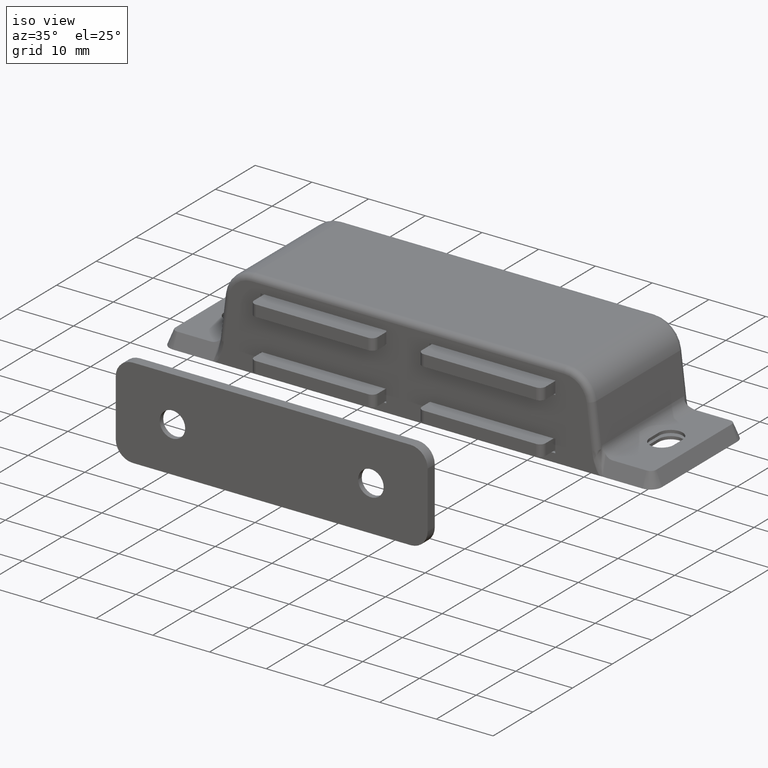
[diagram: clean part render]
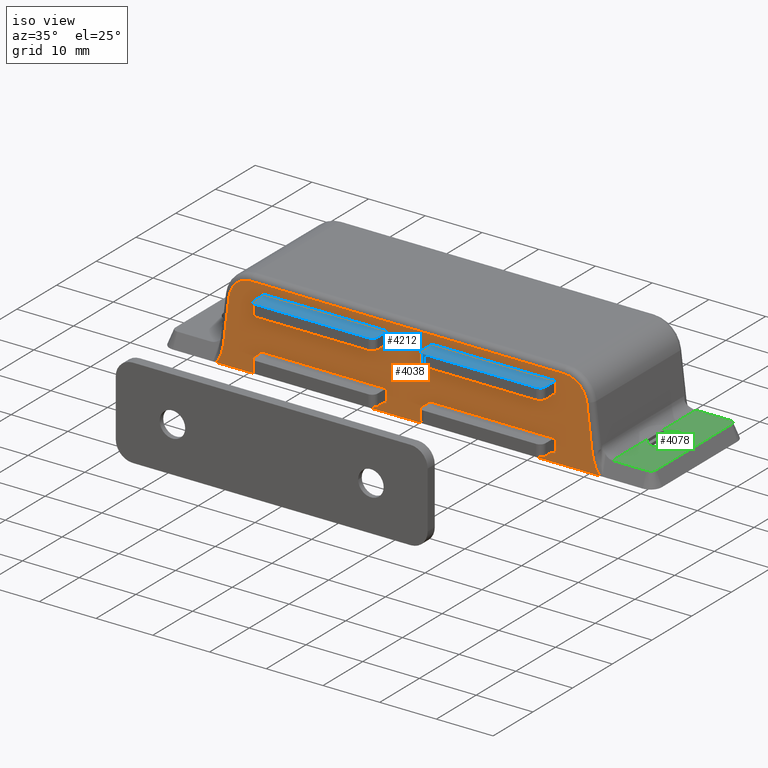
[diagram: same view with three faces highlighted in distinct colors, each labeled with its STEP entity id]
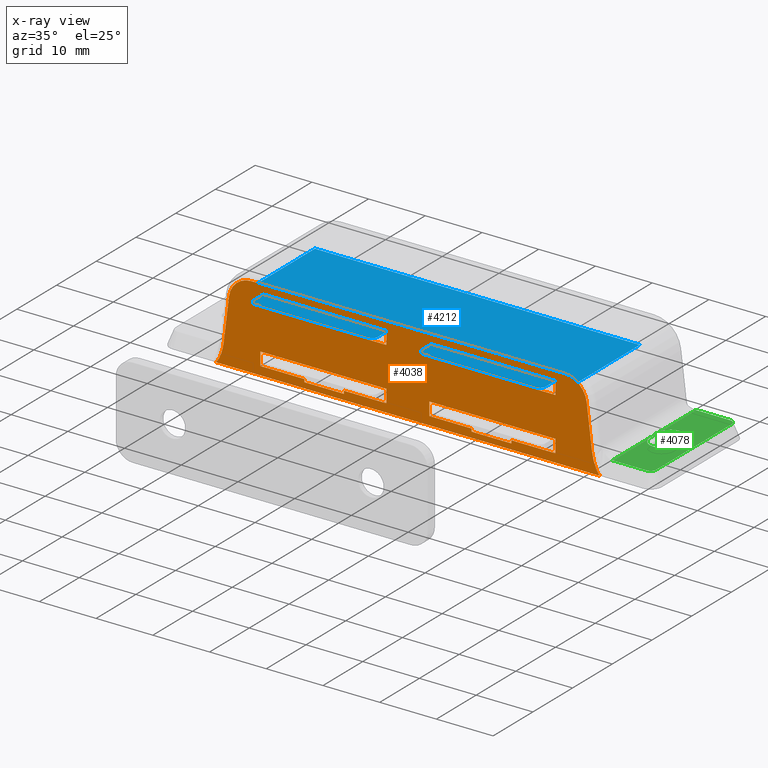
[diagram: x-ray of the same camera — body ghosted, the three highlighted faces saturated]
A machine part, iso view with three faces highlighted in distinct colors.
The next image is the same camera in x-ray (body ghosted, the three faces saturated) — at least one of them is partly hidden behind the body in this view.
Their STEP definitions:

[orange] entity #4038 — the highlighted planar face has unit normal (0, -1, 0).
#152=FACE_BOUND('',#571,.T.);
#153=FACE_BOUND('',#572,.T.);
#154=FACE_BOUND('',#573,.T.);
#155=FACE_BOUND('',#574,.T.);
#180=CIRCLE('',#4282,4.);
#181=CIRCLE('',#4283,4.);
#290=ELLIPSE('',#4281,4.065034677659,1.5);
#291=ELLIPSE('',#4284,4.06503467766131,1.5);
#336=FACE_OUTER_BOUND('',#570,.T.);
#570=EDGE_LOOP('',(#2752,#2753,#2754,#2755,#2756,#2757,#2758,#2759));
#571=EDGE_LOOP('',(#2760,#2761,#2762,#2763));
#572=EDGE_LOOP('',(#2764,#2765,#2766,#2767));
#573=EDGE_LOOP('',(#2768,#2769,#2770,#2771,#2772,#2773,#2774,#2775));
#574=EDGE_LOOP('',(#2776,#2777,#2778,#2779,#2780,#2781,#2782,#2783));
#814=LINE('',#5768,#1250);
#818=LINE('',#5777,#1254);
#822=LINE('',#5784,#1258);
#825=LINE('',#5790,#1261);
#827=LINE('',#5793,#1263);
#830=LINE('',#5801,#1266);
#833=LINE('',#5807,#1269);
#836=LINE('',#5813,#1272);
#839=LINE('',#5817,#1275);
#842=LINE('',#5825,#1278);
#846=LINE('',#5834,#1282);
#849=LINE('',#5840,#1285);
#853=LINE('',#5847,#1289);
#855=LINE('',#5850,#1291);
#858=LINE('',#5858,#1294);
#861=LINE('',#5864,#1297);
#864=LINE('',#5870,#1300);
#867=LINE('',#5874,#1303);
#868=LINE('',#5877,#1304);
#871=LINE('',#5883,#1307);
#874=LINE('',#5892,#1310);
#875=LINE('',#5896,#1311);
#876=LINE('',#5900,#1312);
#877=LINE('',#5903,#1313);
#878=LINE('',#5905,#1314);
#879=LINE('',#5906,#1315);
#880=LINE('',#5908,#1316);
#881=LINE('',#5909,#1317);
#1250=VECTOR('',#4620,7.75);
#1254=VECTOR('',#4626,7.45);
#1258=VECTOR('',#4632,2.30000000000304);
#1261=VECTOR('',#4637,22.2);
#1263=VECTOR('',#4641,2.3000000000036);
#1266=VECTOR('',#4646,2.2999999999975);
#1269=VECTOR('',#4651,22.2);
#1272=VECTOR('',#4656,2.2999999999975);
#1275=VECTOR('',#4661,22.2);
#1278=VECTOR('',#4666,7.45);
#1282=VECTOR('',#4672,7.75);
#1285=VECTOR('',#4677,2.30000000000304);
#1289=VECTOR('',#4683,2.30000000000304);
#1291=VECTOR('',#4687,22.2);
#1294=VECTOR('',#4692,22.2);
#1297=VECTOR('',#4697,2.3);
#1300=VECTOR('',#4702,22.2);
#1303=VECTOR('',#4707,2.3);
#1304=VECTOR('',#4710,0.5);
#1307=VECTOR('',#4715,0.5);
#1310=VECTOR('',#4722,7.47974305745651);
#1311=VECTOR('',#4725,55.1527473544603);
#1312=VECTOR('',#4728,7.47974305754136);
#1313=VECTOR('',#4731,67.7868555901298);
#1314=VECTOR('',#4732,0.5);
#1315=VECTOR('',#4733,7.);
#1316=VECTOR('',#4734,0.5);
#1317=VECTOR('',#4735,7.);
#1686=VERTEX_POINT('',#5765);
#1687=VERTEX_POINT('',#5767);
#1690=VERTEX_POINT('',#5774);
#1691=VERTEX_POINT('',#5776);
#1693=VERTEX_POINT('',#5782);
#1695=VERTEX_POINT('',#5788);
#1698=VERTEX_POINT('',#5798);
#1699=VERTEX_POINT('',#5800);
#1701=VERTEX_POINT('',#5806);
#1703=VERTEX_POINT('',#5812);
#1706=VERTEX_POINT('',#5822);
#1707=VERTEX_POINT('',#5824);
#1710=VERTEX_POINT('',#5831);
#1711=VERTEX_POINT('',#5833);
#1713=VERTEX_POINT('',#5839);
#1715=VERTEX_POINT('',#5845);
#1718=VERTEX_POINT('',#5855);
#1719=VERTEX_POINT('',#5857);
#1721=VERTEX_POINT('',#5863);
#1723=VERTEX_POINT('',#5869);
#1724=VERTEX_POINT('',#5876);
#1726=VERTEX_POINT('',#5882);
#1728=VERTEX_POINT('',#5888);
#1729=VERTEX_POINT('',#5889);
#1730=VERTEX_POINT('',#5891);
#1731=VERTEX_POINT('',#5893);
#1732=VERTEX_POINT('',#5895);
#1733=VERTEX_POINT('',#5897);
#1734=VERTEX_POINT('',#5899);
#1735=VERTEX_POINT('',#5901);
#1736=VERTEX_POINT('',#5904);
#1737=VERTEX_POINT('',#5907);
#2072=EDGE_CURVE('',#1687,#1686,#814,.T.);
#2076=EDGE_CURVE('',#1691,#1690,#818,.T.);
#2080=EDGE_CURVE('',#1690,#1693,#822,.T.);
#2083=EDGE_CURVE('',#1693,#1695,#825,.T.);
#2085=EDGE_CURVE('',#1695,#1687,#827,.T.);
#2088=EDGE_CURVE('',#1699,#1698,#830,.T.);
#2091=EDGE_CURVE('',#1701,#1699,#833,.T.);
#2094=EDGE_CURVE('',#1703,#1701,#836,.T.);
#2097=EDGE_CURVE('',#1698,#1703,#839,.T.);
#2100=EDGE_CURVE('',#1707,#1706,#842,.T.);
#2104=EDGE_CURVE('',#1711,#1710,#846,.T.);
#2107=EDGE_CURVE('',#1713,#1707,#849,.T.);
#2111=EDGE_CURVE('',#1710,#1715,#853,.T.);
#2113=EDGE_CURVE('',#1715,#1713,#855,.T.);
#2116=EDGE_CURVE('',#1719,#1718,#858,.T.);
#2119=EDGE_CURVE('',#1721,#1719,#861,.T.);
#2122=EDGE_CURVE('',#1723,#1721,#864,.T.);
#2125=EDGE_CURVE('',#1718,#1723,#867,.T.);
#2126=EDGE_CURVE('',#1724,#1691,#868,.T.);
#2129=EDGE_CURVE('',#1726,#1711,#871,.T.);
#2132=EDGE_CURVE('',#1728,#1729,#290,.T.);
#2133=EDGE_CURVE('',#1730,#1728,#874,.T.);
#2134=EDGE_CURVE('',#1731,#1730,#180,.T.);
#2135=EDGE_CURVE('',#1732,#1731,#875,.T.);
#2136=EDGE_CURVE('',#1733,#1732,#181,.T.);
#2137=EDGE_CURVE('',#1734,#1733,#876,.T.);
#2138=EDGE_CURVE('',#1735,#1734,#291,.T.);
#2139=EDGE_CURVE('',#1735,#1729,#877,.T.);
#2140=EDGE_CURVE('',#1706,#1736,#878,.T.);
#2141=EDGE_CURVE('',#1736,#1726,#879,.T.);
#2142=EDGE_CURVE('',#1686,#1737,#880,.T.);
#2143=EDGE_CURVE('',#1737,#1724,#881,.T.);
#2752=ORIENTED_EDGE('',*,*,#2132,.F.);
#2753=ORIENTED_EDGE('',*,*,#2133,.F.);
#2754=ORIENTED_EDGE('',*,*,#2134,.F.);
#2755=ORIENTED_EDGE('',*,*,#2135,.F.);
#2756=ORIENTED_EDGE('',*,*,#2136,.F.);
#2757=ORIENTED_EDGE('',*,*,#2137,.F.);
#2758=ORIENTED_EDGE('',*,*,#2138,.F.);
#2759=ORIENTED_EDGE('',*,*,#2139,.T.);
#2760=ORIENTED_EDGE('',*,*,#2094,.T.);
#2761=ORIENTED_EDGE('',*,*,#2091,.T.);
#2762=ORIENTED_EDGE('',*,*,#2088,.T.);
#2763=ORIENTED_EDGE('',*,*,#2097,.T.);
#2764=ORIENTED_EDGE('',*,*,#2122,.T.);
#2765=ORIENTED_EDGE('',*,*,#2119,.T.);
#2766=ORIENTED_EDGE('',*,*,#2116,.T.);
#2767=ORIENTED_EDGE('',*,*,#2125,.T.);
#2768=ORIENTED_EDGE('',*,*,#2104,.T.);
#2769=ORIENTED_EDGE('',*,*,#2111,.T.);
#2770=ORIENTED_EDGE('',*,*,#2113,.T.);
#2771=ORIENTED_EDGE('',*,*,#2107,.T.);
#2772=ORIENTED_EDGE('',*,*,#2100,.T.);
#2773=ORIENTED_EDGE('',*,*,#2140,.T.);
#2774=ORIENTED_EDGE('',*,*,#2141,.T.);
#2775=ORIENTED_EDGE('',*,*,#2129,.T.);
#2776=ORIENTED_EDGE('',*,*,#2076,.T.);
#2777=ORIENTED_EDGE('',*,*,#2080,.T.);
#2778=ORIENTED_EDGE('',*,*,#2083,.T.);
#2779=ORIENTED_EDGE('',*,*,#2085,.T.);
#2780=ORIENTED_EDGE('',*,*,#2072,.T.);
#2781=ORIENTED_EDGE('',*,*,#2142,.T.);
#2782=ORIENTED_EDGE('',*,*,#2143,.T.);
#2783=ORIENTED_EDGE('',*,*,#2126,.T.);
#3896=PLANE('',#4280);
#4038=ADVANCED_FACE('',(#336,#152,#153,#154,#155),#3896,.T.);
#4280=AXIS2_PLACEMENT_3D('',#5887,#4718,#4719);
#4281=AXIS2_PLACEMENT_3D('',#5890,#4720,#4721);
#4282=AXIS2_PLACEMENT_3D('',#5894,#4723,#4724);
#4283=AXIS2_PLACEMENT_3D('',#5898,#4726,#4727);
#4284=AXIS2_PLACEMENT_3D('',#5902,#4729,#4730);
#4620=DIRECTION('',(-1.,0.,-1.50030138462859E-16));
#4626=DIRECTION('',(-1.,0.,-1.50030138462859E-16));
#4632=DIRECTION('',(0.,0.,1.));
#4637=DIRECTION('',(1.,0.,2.50550331232975E-14));
#4641=DIRECTION('',(0.,0.,-1.));
#4646=DIRECTION('',(0.,0.,1.));
#4651=DIRECTION('',(-1.,0.,1.00020092308573E-16));
#4656=DIRECTION('',(0.,0.,-1.));
#4661=DIRECTION('',(1.,0.,0.));
#4666=DIRECTION('',(-1.,0.,0.));
#4672=DIRECTION('',(-1.,0.,0.));
#4677=DIRECTION('',(0.,0.,-1.));
#4683=DIRECTION('',(-3.86164530303891E-15,0.,1.));
#4687=DIRECTION('',(1.,0.,0.));
#4692=DIRECTION('',(1.,0.,0.));
#4697=DIRECTION('',(0.,0.,1.));
#4702=DIRECTION('',(-1.,0.,0.));
#4707=DIRECTION('',(4.82705662880501E-16,0.,-1.));
#4710=DIRECTION('',(0.,0.,1.));
#4715=DIRECTION('',(0.,0.,1.));
#4718=DIRECTION('center_axis',(0.,-1.,0.));
#4719=DIRECTION('ref_axis',(0.,0.,-1.));
#4720=DIRECTION('center_axis',(0.,-1.,0.));
#4721=DIRECTION('ref_axis',(0.121869343405092,0.,-0.992546151641329));
#4722=DIRECTION('',(0.121869343405092,0.,-0.992546151641329));
#4723=DIRECTION('center_axis',(0.,1.,0.));
#4724=DIRECTION('ref_axis',(0.662620048215758,0.,0.748955720788984));
#4725=DIRECTION('',(1.,0.,4.85722573273506E-16));
#4726=DIRECTION('center_axis',(0.,1.,0.));
#4727=DIRECTION('ref_axis',(-0.662620048214059,0.,0.748955720790487));
#4728=DIRECTION('',(0.121869343409597,0.,0.992546151640776));
#4729=DIRECTION('center_axis',(0.,-1.,0.));
#4730=DIRECTION('ref_axis',(-0.121869343409597,0.,-0.992546151640776));
#4731=DIRECTION('',(1.,0.,0.));
#4732=DIRECTION('',(0.,0.,-1.));
#4733=DIRECTION('',(-1.,0.,0.));
#4734=DIRECTION('',(0.,0.,-1.));
#4735=DIRECTION('',(-1.,0.,0.));
#5765=CARTESIAN_POINT('',(18.25,-11.5,1.5));
#5767=CARTESIAN_POINT('',(26.,-11.5,1.5));
#5768=CARTESIAN_POINT('',(1.9,-11.5,1.5));
#5774=CARTESIAN_POINT('',(3.8,-11.5,1.5));
#5776=CARTESIAN_POINT('',(11.25,-11.5,1.5));
#5777=CARTESIAN_POINT('',(1.9,-11.5,1.5));
#5782=CARTESIAN_POINT('',(3.8,-11.5,3.80000000000304));
#5784=CARTESIAN_POINT('',(3.8,-11.5,5.80000000000152));
#5788=CARTESIAN_POINT('',(26.,-11.5,3.8000000000036));
#5790=CARTESIAN_POINT('',(13.,-11.5,3.80000000000328));
#5793=CARTESIAN_POINT('',(26.,-11.5,4.65));
#5798=CARTESIAN_POINT('',(3.8,-11.5,13.1000000000005));
#5800=CARTESIAN_POINT('',(3.8,-11.5,10.800000000003));
#5801=CARTESIAN_POINT('',(3.8,-11.5,10.4500000000002));
#5806=CARTESIAN_POINT('',(26.,-11.5,10.800000000003));
#5807=CARTESIAN_POINT('',(1.9,-11.5,10.800000000003));
#5812=CARTESIAN_POINT('',(26.,-11.5,13.1000000000005));
#5813=CARTESIAN_POINT('',(26.,-11.5,9.30000000000152));
#5817=CARTESIAN_POINT('',(13.,-11.5,13.1000000000005));
#5822=CARTESIAN_POINT('',(-11.25,-11.5,1.5));
#5824=CARTESIAN_POINT('',(-3.8,-11.5,1.5));
#5825=CARTESIAN_POINT('',(-13.,-11.5,1.5));
#5831=CARTESIAN_POINT('',(-26.,-11.5,1.5));
#5833=CARTESIAN_POINT('',(-18.25,-11.5,1.5));
#5834=CARTESIAN_POINT('',(-13.,-11.5,1.5));
#5839=CARTESIAN_POINT('',(-3.8,-11.5,3.80000000000304));
#5840=CARTESIAN_POINT('',(-3.8,-11.5,4.65));
#5845=CARTESIAN_POINT('',(-26.,-11.5,3.80000000000304));
#5847=CARTESIAN_POINT('',(-26.,-11.5,5.80000000000147));
#5850=CARTESIAN_POINT('',(-1.9,-11.5,3.80000000000304));
#5855=CARTESIAN_POINT('',(-3.8,-11.5,13.100000000003));
#5857=CARTESIAN_POINT('',(-26.,-11.5,13.100000000003));
#5858=CARTESIAN_POINT('',(-1.9,-11.5,13.100000000003));
#5863=CARTESIAN_POINT('',(-26.,-11.5,10.800000000003));
#5864=CARTESIAN_POINT('',(-26.,-11.5,10.4500000000015));
#5869=CARTESIAN_POINT('',(-3.8,-11.5,10.800000000003));
#5870=CARTESIAN_POINT('',(-13.,-11.5,10.800000000003));
#5874=CARTESIAN_POINT('',(-3.8,-11.5,9.30000000000152));
#5876=CARTESIAN_POINT('',(11.25,-11.5,1.));
#5877=CARTESIAN_POINT('',(11.25,-11.5,4.4));
#5882=CARTESIAN_POINT('',(-18.25,-11.5,1.));
#5883=CARTESIAN_POINT('',(-18.25,-11.5,4.4));
#5887=CARTESIAN_POINT('Origin',(-8.88178419700125E-15,-11.5,7.8));
#5888=CARTESIAN_POINT('',(32.4581096590699,-11.5,3.66348718667599));
#5889=CARTESIAN_POINT('',(33.8934277950629,-11.5,-8.15320033709098E-16));
#5890=CARTESIAN_POINT('Origin',(33.9469288865319,-11.5,3.84629120178363));
#5891=CARTESIAN_POINT('',(31.5465582838189,-11.5,11.0874773736204));
#5892=CARTESIAN_POINT('',(31.2415673550193,-11.5,13.5714291551552));
#5893=CARTESIAN_POINT('',(27.5763736772536,-11.5,14.6));
#5894=CARTESIAN_POINT('Origin',(27.5763736772536,-11.5,10.6));
#5895=CARTESIAN_POINT('',(-27.5763736772067,-11.5,14.6));
#5896=CARTESIAN_POINT('',(-15.9999999999832,-11.5,14.6));
#5897=CARTESIAN_POINT('',(-31.5465582837698,-11.5,11.0874773736384));
#5898=CARTESIAN_POINT('Origin',(-27.5763736772067,-11.5,10.6));
#5899=CARTESIAN_POINT('',(-32.4581096590649,-11.5,3.66348718661392));
#5900=CARTESIAN_POINT('',(-32.0458062289001,-11.5,7.02142915519384));
#5901=CARTESIAN_POINT('',(-33.8934277950669,-11.5,-4.59719565944162E-15));
#5902=CARTESIAN_POINT('Origin',(-33.946928886526,-11.5,3.84629120172831));
#5903=CARTESIAN_POINT('',(-43.4,-11.5,0.));
#5904=CARTESIAN_POINT('',(-11.25,-11.5,1.));
#5905=CARTESIAN_POINT('',(-11.25,-11.5,4.9));
#5906=CARTESIAN_POINT('',(-5.625,-11.5,1.));
#5907=CARTESIAN_POINT('',(18.25,-11.5,1.));
#5908=CARTESIAN_POINT('',(18.25,-11.5,4.9));
#5909=CARTESIAN_POINT('',(9.125,-11.5,1.));

[blue] entity #4212 — the highlighted planar face has unit normal (0, 0, 1).
#268=CIRCLE('',#4545,1.);
#273=CIRCLE('',#4554,1.);
#274=CIRCLE('',#4558,1.);
#275=CIRCLE('',#4560,1.);
#510=FACE_OUTER_BOUND('',#764,.T.);
#764=EDGE_LOOP('',(#3692,#3693,#3694,#3695,#3696,#3697,#3698,#3699,#3700,
#3701,#3702,#3703,#3704,#3705,#3706,#3707));
#1170=LINE('',#7777,#1606);
#1173=LINE('',#7782,#1609);
#1176=LINE('',#7791,#1612);
#1179=LINE('',#7796,#1615);
#1181=LINE('',#7803,#1617);
#1182=LINE('',#7805,#1618);
#1183=LINE('',#7807,#1619);
#1184=LINE('',#7809,#1620);
#1185=LINE('',#7811,#1621);
#1186=LINE('',#7812,#1622);
#1187=LINE('',#7814,#1623);
#1188=LINE('',#7816,#1624);
#1606=VECTOR('',#5558,19.8);
#1609=VECTOR('',#5563,2.5);
#1612=VECTOR('',#5572,19.8);
#1615=VECTOR('',#5577,2.5);
#1617=VECTOR('',#5585,2.95);
#1618=VECTOR('',#5586,17.);
#1619=VECTOR('',#5587,57.3);
#1620=VECTOR('',#5588,17.);
#1621=VECTOR('',#5589,2.95);
#1622=VECTOR('',#5590,2.5);
#1623=VECTOR('',#5591,7.8);
#1624=VECTOR('',#5592,2.5);
#1992=VERTEX_POINT('',#7737);
#1993=VERTEX_POINT('',#7738);
#2010=VERTEX_POINT('',#7776);
#2011=VERTEX_POINT('',#7780);
#2012=VERTEX_POINT('',#7784);
#2013=VERTEX_POINT('',#7785);
#2014=VERTEX_POINT('',#7790);
#2015=VERTEX_POINT('',#7794);
#2016=VERTEX_POINT('',#7798);
#2017=VERTEX_POINT('',#7802);
#2018=VERTEX_POINT('',#7804);
#2019=VERTEX_POINT('',#7806);
#2020=VERTEX_POINT('',#7808);
#2021=VERTEX_POINT('',#7810);
#2022=VERTEX_POINT('',#7813);
#2023=VERTEX_POINT('',#7815);
#2558=EDGE_CURVE('',#1992,#1993,#268,.T.);
#2577=EDGE_CURVE('',#2010,#1993,#1170,.T.);
#2580=EDGE_CURVE('',#1992,#2011,#1173,.T.);
#2581=EDGE_CURVE('',#2012,#2013,#273,.T.);
#2584=EDGE_CURVE('',#2014,#2013,#1176,.T.);
#2587=EDGE_CURVE('',#2012,#2015,#1179,.T.);
#2588=EDGE_CURVE('',#2014,#2016,#274,.T.);
#2590=EDGE_CURVE('',#2011,#2017,#1181,.T.);
#2591=EDGE_CURVE('',#2018,#2017,#1182,.T.);
#2592=EDGE_CURVE('',#2019,#2018,#1183,.T.);
#2593=EDGE_CURVE('',#2020,#2019,#1184,.T.);
#2594=EDGE_CURVE('',#2020,#2021,#1185,.T.);
#2595=EDGE_CURVE('',#2021,#2016,#1186,.T.);
#2596=EDGE_CURVE('',#2015,#2022,#1187,.T.);
#2597=EDGE_CURVE('',#2022,#2023,#1188,.T.);
#2598=EDGE_CURVE('',#2010,#2023,#275,.T.);
#3692=ORIENTED_EDGE('',*,*,#2558,.F.);
#3693=ORIENTED_EDGE('',*,*,#2580,.T.);
#3694=ORIENTED_EDGE('',*,*,#2590,.T.);
#3695=ORIENTED_EDGE('',*,*,#2591,.F.);
#3696=ORIENTED_EDGE('',*,*,#2592,.F.);
#3697=ORIENTED_EDGE('',*,*,#2593,.F.);
#3698=ORIENTED_EDGE('',*,*,#2594,.T.);
#3699=ORIENTED_EDGE('',*,*,#2595,.T.);
#3700=ORIENTED_EDGE('',*,*,#2588,.F.);
#3701=ORIENTED_EDGE('',*,*,#2584,.T.);
#3702=ORIENTED_EDGE('',*,*,#2581,.F.);
#3703=ORIENTED_EDGE('',*,*,#2587,.T.);
#3704=ORIENTED_EDGE('',*,*,#2596,.T.);
#3705=ORIENTED_EDGE('',*,*,#2597,.T.);
#3706=ORIENTED_EDGE('',*,*,#2598,.F.);
#3707=ORIENTED_EDGE('',*,*,#2577,.T.);
#3987=PLANE('',#4559);
#4212=ADVANCED_FACE('',(#510),#3987,.T.);
#4545=AXIS2_PLACEMENT_3D('',#7739,#5530,#5531);
#4554=AXIS2_PLACEMENT_3D('',#7786,#5566,#5567);
#4558=AXIS2_PLACEMENT_3D('',#7799,#5580,#5581);
#4559=AXIS2_PLACEMENT_3D('',#7801,#5583,#5584);
#4560=AXIS2_PLACEMENT_3D('',#7817,#5593,#5594);
#5530=DIRECTION('center_axis',(0.,-6.49886648561067E-16,-1.));
#5531=DIRECTION('ref_axis',(0.707106781186549,-0.707106781186546,0.));
#5558=DIRECTION('',(1.,0.,0.));
#5563=DIRECTION('',(0.,1.,-6.49886648561067E-16));
#5566=DIRECTION('center_axis',(0.,-6.49886648561067E-16,-1.));
#5567=DIRECTION('ref_axis',(0.707106781186547,-0.707106781186548,0.));
#5572=DIRECTION('',(1.,0.,0.));
#5577=DIRECTION('',(0.,1.,-6.49886648561067E-16));
#5580=DIRECTION('center_axis',(0.,-6.49886648561067E-16,-1.));
#5581=DIRECTION('ref_axis',(-0.707106781186549,-0.707106781186546,0.));
#5583=DIRECTION('center_axis',(0.,6.49886648561067E-16,1.));
#5584=DIRECTION('ref_axis',(0.,-1.,0.));
#5585=DIRECTION('',(1.,0.,0.));
#5586=DIRECTION('',(0.,-1.,6.49886648561067E-16));
#5587=DIRECTION('',(1.,0.,0.));
#5588=DIRECTION('',(0.,1.,-6.49886648561067E-16));
#5589=DIRECTION('',(1.,0.,0.));
#5590=DIRECTION('',(0.,-1.,6.49886648561067E-16));
#5591=DIRECTION('',(1.,0.,0.));
#5592=DIRECTION('',(0.,-1.,6.49886648561067E-16));
#5593=DIRECTION('center_axis',(0.,-6.49886648561067E-16,-1.));
#5594=DIRECTION('ref_axis',(-0.707106781186547,-0.707106781186548,0.));
#7737=CARTESIAN_POINT('',(25.7,-13.5,12.800000000003));
#7738=CARTESIAN_POINT('',(24.7,-14.5,12.800000000003));
#7739=CARTESIAN_POINT('Origin',(24.7,-13.5,12.800000000003));
#7776=CARTESIAN_POINT('',(4.9,-14.5,12.800000000003));
#7777=CARTESIAN_POINT('',(0.,-14.5,12.800000000003));
#7780=CARTESIAN_POINT('',(25.7,-11.,12.800000000003));
#7782=CARTESIAN_POINT('',(25.7,-4.25,12.800000000003));
#7784=CARTESIAN_POINT('',(-3.9,-13.5,12.800000000003));
#7785=CARTESIAN_POINT('',(-4.9,-14.5,12.800000000003));
#7786=CARTESIAN_POINT('Origin',(-4.9,-13.5,12.800000000003));
#7790=CARTESIAN_POINT('',(-24.7,-14.5,12.800000000003));
#7791=CARTESIAN_POINT('',(0.,-14.5,12.800000000003));
#7794=CARTESIAN_POINT('',(-3.9,-11.,12.800000000003));
#7796=CARTESIAN_POINT('',(-3.9,-4.25,12.800000000003));
#7798=CARTESIAN_POINT('',(-25.7,-13.5,12.800000000003));
#7799=CARTESIAN_POINT('Origin',(-24.7,-13.5,12.800000000003));
#7801=CARTESIAN_POINT('Origin',(0.,6.,12.800000000003));
#7802=CARTESIAN_POINT('',(28.65,-11.,12.800000000003));
#7803=CARTESIAN_POINT('',(12.9,-11.,12.800000000003));
#7804=CARTESIAN_POINT('',(28.65,6.,12.800000000003));
#7805=CARTESIAN_POINT('',(28.65,-14.5,12.800000000003));
#7806=CARTESIAN_POINT('',(-28.65,6.,12.800000000003));
#7807=CARTESIAN_POINT('',(0.,6.,12.800000000003));
#7808=CARTESIAN_POINT('',(-28.65,-11.,12.800000000003));
#7809=CARTESIAN_POINT('',(-28.65,-14.5,12.800000000003));
#7810=CARTESIAN_POINT('',(-25.7,-11.,12.800000000003));
#7811=CARTESIAN_POINT('',(-14.325,-11.,12.800000000003));
#7812=CARTESIAN_POINT('',(-25.7,-2.5,12.800000000003));
#7813=CARTESIAN_POINT('',(3.9,-11.,12.800000000003));
#7814=CARTESIAN_POINT('',(-1.9,-11.,12.800000000003));
#7815=CARTESIAN_POINT('',(3.9,-13.5,12.800000000003));
#7816=CARTESIAN_POINT('',(3.9,-2.5,12.800000000003));
#7817=CARTESIAN_POINT('Origin',(4.9,-13.5,12.800000000003));

[green] entity #4078 — the highlighted planar face has unit normal (0, 0, 1).
#159=FACE_BOUND('',#618,.T.);
#206=CIRCLE('',#4353,1.);
#207=CIRCLE('',#4354,1.);
#208=CIRCLE('',#4355,2.10000000000996);
#209=CIRCLE('',#4356,2.10000000000997);
#376=FACE_OUTER_BOUND('',#617,.T.);
#617=EDGE_LOOP('',(#2970,#2971,#2972,#2973,#2974,#2975));
#618=EDGE_LOOP('',(#2976,#2977,#2978,#2979));
#943=LINE('',#6385,#1379);
#944=LINE('',#6387,#1380);
#945=LINE('',#6391,#1381);
#946=LINE('',#6394,#1382);
#947=LINE('',#6397,#1383);
#948=LINE('',#6401,#1384);
#1379=VECTOR('',#4933,21.);
#1380=VECTOR('',#4934,6.02207172302709);
#1381=VECTOR('',#4937,19.);
#1382=VECTOR('',#4940,6.02207172302709);
#1383=VECTOR('',#4941,2.2999999988504);
#1384=VECTOR('',#4944,2.2999999988504);
#1802=VERTEX_POINT('',#6383);
#1803=VERTEX_POINT('',#6384);
#1804=VERTEX_POINT('',#6386);
#1805=VERTEX_POINT('',#6388);
#1806=VERTEX_POINT('',#6390);
#1807=VERTEX_POINT('',#6392);
#1808=VERTEX_POINT('',#6395);
#1809=VERTEX_POINT('',#6396);
#1810=VERTEX_POINT('',#6398);
#1811=VERTEX_POINT('',#6400);
#2247=EDGE_CURVE('',#1802,#1803,#943,.T.);
#2248=EDGE_CURVE('',#1804,#1802,#944,.T.);
#2249=EDGE_CURVE('',#1805,#1804,#206,.T.);
#2250=EDGE_CURVE('',#1806,#1805,#945,.T.);
#2251=EDGE_CURVE('',#1807,#1806,#207,.T.);
#2252=EDGE_CURVE('',#1803,#1807,#946,.T.);
#2253=EDGE_CURVE('',#1808,#1809,#947,.T.);
#2254=EDGE_CURVE('',#1809,#1810,#208,.T.);
#2255=EDGE_CURVE('',#1810,#1811,#948,.T.);
#2256=EDGE_CURVE('',#1811,#1808,#209,.T.);
#2970=ORIENTED_EDGE('',*,*,#2247,.F.);
#2971=ORIENTED_EDGE('',*,*,#2248,.F.);
#2972=ORIENTED_EDGE('',*,*,#2249,.F.);
#2973=ORIENTED_EDGE('',*,*,#2250,.F.);
#2974=ORIENTED_EDGE('',*,*,#2251,.F.);
#2975=ORIENTED_EDGE('',*,*,#2252,.F.);
#2976=ORIENTED_EDGE('',*,*,#2253,.T.);
#2977=ORIENTED_EDGE('',*,*,#2254,.T.);
#2978=ORIENTED_EDGE('',*,*,#2255,.T.);
#2979=ORIENTED_EDGE('',*,*,#2256,.T.);
#3916=PLANE('',#4352);
#4078=ADVANCED_FACE('',(#376,#159),#3916,.T.);
#4352=AXIS2_PLACEMENT_3D('',#6382,#4931,#4932);
#4353=AXIS2_PLACEMENT_3D('',#6389,#4935,#4936);
#4354=AXIS2_PLACEMENT_3D('',#6393,#4938,#4939);
#4355=AXIS2_PLACEMENT_3D('',#6399,#4942,#4943);
#4356=AXIS2_PLACEMENT_3D('',#6402,#4945,#4946);
#4931=DIRECTION('center_axis',(5.66930757054966E-17,0.,1.));
#4932=DIRECTION('ref_axis',(1.,0.,0.));
#4933=DIRECTION('',(0.,1.,0.));
#4934=DIRECTION('',(-1.,0.,5.66930757054966E-17));
#4935=DIRECTION('center_axis',(-5.66930757054966E-17,0.,-1.));
#4936=DIRECTION('ref_axis',(0.707106781186549,-0.707106781186546,-4.0088058277679E-17));
#4937=DIRECTION('',(0.,-1.,0.));
#4938=DIRECTION('center_axis',(-5.66930757054966E-17,0.,-1.));
#4939=DIRECTION('ref_axis',(0.707106781186549,0.707106781186546,-4.0088058277679E-17));
#4940=DIRECTION('',(1.,0.,-5.66930757054966E-17));
#4941=DIRECTION('',(-1.6296143186991E-11,-1.,9.23878479407693E-28));
#4942=DIRECTION('center_axis',(-5.66930757054966E-17,0.,-1.));
#4943=DIRECTION('ref_axis',(1.,-1.87151881293068E-13,-5.66930757054966E-17));
#4944=DIRECTION('',(1.62884198963811E-11,1.,-9.23440622308448E-28));
#4945=DIRECTION('center_axis',(-5.66930757054966E-17,0.,-1.));
#4946=DIRECTION('ref_axis',(-1.,1.86094526031524E-13,5.66930757054966E-17));
#6382=CARTESIAN_POINT('Origin',(33.6084777478609,0.,2.5));
#6383=CARTESIAN_POINT('',(35.3779282769729,-10.5,2.5));
#6384=CARTESIAN_POINT('',(35.3779282769729,10.5,2.5));
#6385=CARTESIAN_POINT('',(35.3779282769729,0.,2.5));
#6386=CARTESIAN_POINT('',(41.4,-10.5,2.5));
#6387=CARTESIAN_POINT('',(16.8042388739304,-10.5,2.5));
#6388=CARTESIAN_POINT('',(42.4,-9.5,2.5));
#6389=CARTESIAN_POINT('Origin',(41.4,-9.5,2.5));
#6390=CARTESIAN_POINT('',(42.4,9.5,2.5));
#6391=CARTESIAN_POINT('',(42.4,0.,2.5));
#6392=CARTESIAN_POINT('',(41.4,10.5,2.5));
#6393=CARTESIAN_POINT('Origin',(41.4,9.5,2.5));
#6394=CARTESIAN_POINT('',(16.8042388739304,10.5,2.5));
#6395=CARTESIAN_POINT('',(39.6000000001502,1.15000000000466,2.5));
#6396=CARTESIAN_POINT('',(39.6000000001127,-1.14999999884574,2.5));
#6397=CARTESIAN_POINT('',(39.6000000001408,0.574999999953511,2.5));
#6398=CARTESIAN_POINT('',(35.4000000000928,-1.14999999884496,2.5));
#6399=CARTESIAN_POINT('Origin',(37.5000000001028,-1.14999999884535,2.5));
#6400=CARTESIAN_POINT('',(35.4000000001303,1.15000000000544,2.5));
#6401=CARTESIAN_POINT('',(35.4000000001022,-0.574999999437069,2.5));
#6402=CARTESIAN_POINT('Origin',(37.5000000001402,1.15000000000505,2.5));